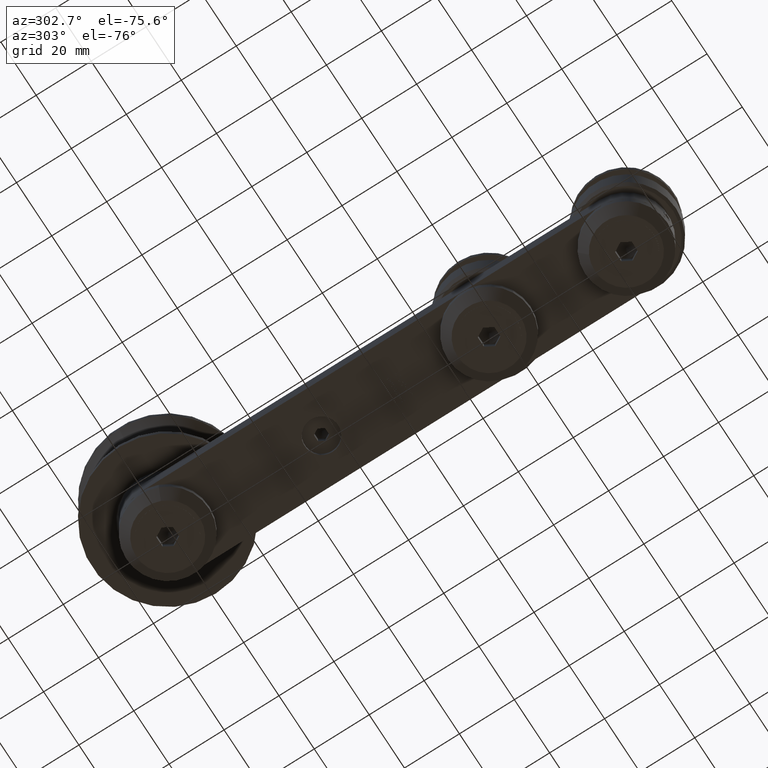
[diagram: clean part render]
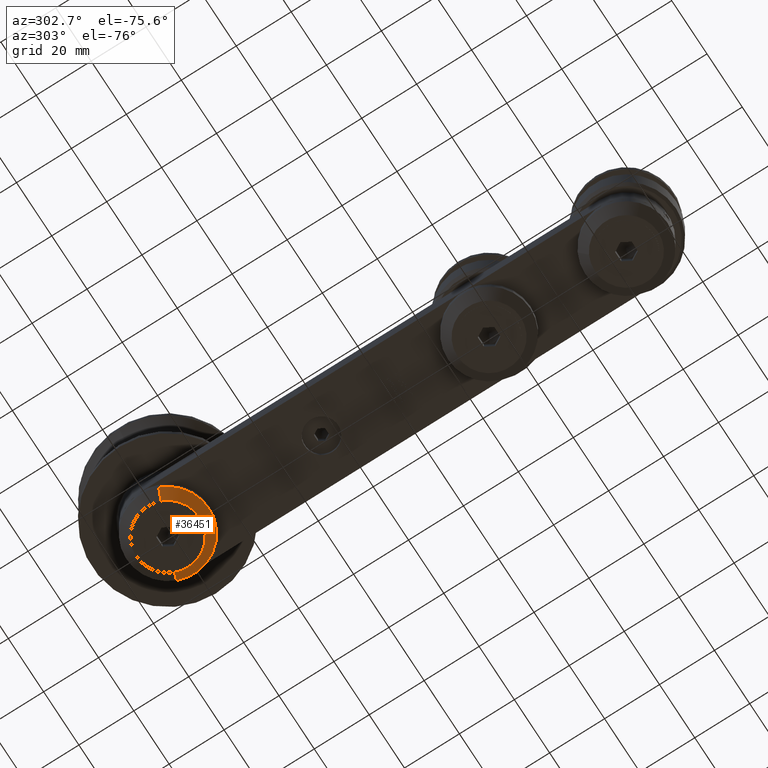
[diagram: same view with one face highlighted and labeled with its STEP entity id]
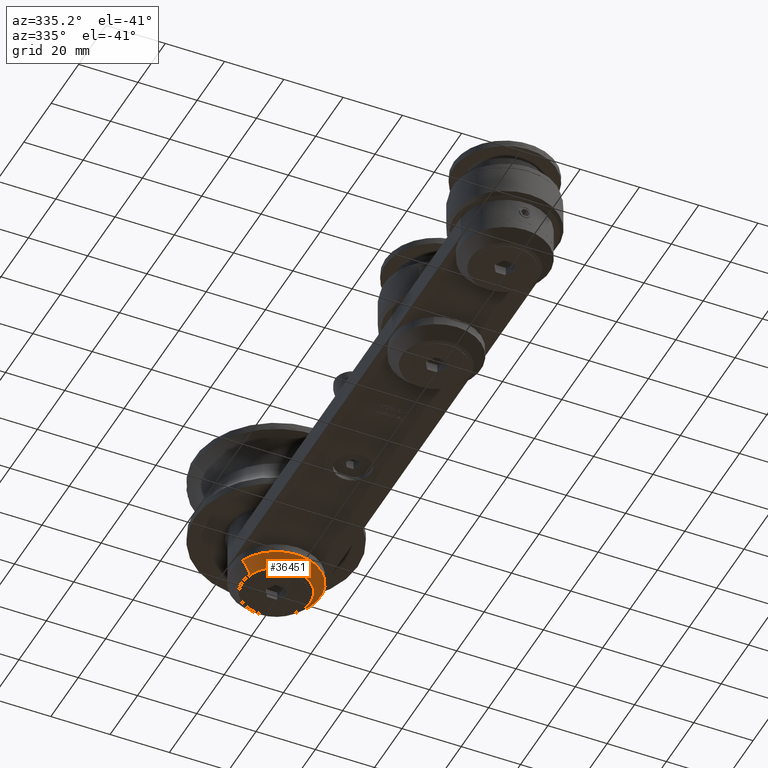
[diagram: same view with one face highlighted and labeled with its STEP entity id]
A machine part, auxiliary view. The second image highlights one B-rep face of the part: STEP entity #36451.
A second angle (auxiliary view) of the same face is appended — the face is thin or edge-on in the first view.
In plain terms, the highlighted conical surface has half-angle 45 deg.
Its self-contained STEP definition (entity closure, byte-faithful):
#1489 = ORIENTED_EDGE ( 'NONE', *, *, #17544, .T. ) ;
#1906 = ORIENTED_EDGE ( 'NONE', *, *, #5349, .T. ) ;
#5342 = DIRECTION ( 'NONE',  ( -0.7071067811865473500, 0.0000000000000000000, -0.7071067811865477900 ) ) ;
#5349 = EDGE_CURVE ( 'NONE', #27456, #34593, #5690, .T. ) ;
#5542 = AXIS2_PLACEMENT_3D ( 'NONE', #20684, #27823, #34748 ) ;
#5690 = LINE ( 'NONE', #40363, #30808 ) ;
#6985 = VECTOR ( 'NONE', #39434, 999.9999999999998900 ) ;
#7422 = ORIENTED_EDGE ( 'NONE', *, *, #34177, .F. ) ;
#8719 = EDGE_LOOP ( 'NONE', ( #7422, #1489, #1906, #24874 ) ) ;
#17544 = EDGE_CURVE ( 'NONE', #24027, #27456, #34519, .T. ) ;
#18284 = CARTESIAN_POINT ( 'NONE',  ( 0.0000000000000000000, 0.0000000000000000000, 6.500000000000000900 ) ) ;
#18861 = DIRECTION ( 'NONE',  ( -1.000000000000000000, 0.0000000000000000000, 0.0000000000000000000 ) ) ;
#20334 = CARTESIAN_POINT ( 'NONE',  ( 11.50000000000000000, 1.622657008870242900E-015, 6.500000000000000900 ) ) ;
#20684 = CARTESIAN_POINT ( 'NONE',  ( 0.0000000000000000000, 0.0000000000000000000, 2.999999999999999100 ) ) ;
#21180 = DIRECTION ( 'NONE',  ( -1.000000000000000000, 0.0000000000000000000, 0.0000000000000000000 ) ) ;
#22662 = CARTESIAN_POINT ( 'NONE',  ( 0.0000000000000000000, 0.0000000000000000000, 2.999999999999999100 ) ) ;
#22753 = CIRCLE ( 'NONE', #5542, 15.00000000000000000 ) ;
#23837 = AXIS2_PLACEMENT_3D ( 'NONE', #18284, #32021, #21180 ) ;
#24027 = VERTEX_POINT ( 'NONE', #20334 ) ;
#24874 = ORIENTED_EDGE ( 'NONE', *, *, #35136, .F. ) ;
#25541 = LINE ( 'NONE', #41029, #6985 ) ;
#26011 = DIRECTION ( 'NONE',  ( -0.0000000000000000000, -0.0000000000000000000, -1.000000000000000000 ) ) ;
#27456 = VERTEX_POINT ( 'NONE', #29896 ) ;
#27664 = CARTESIAN_POINT ( 'NONE',  ( -15.00000000000000000, 0.0000000000000000000, 2.999999999999999100 ) ) ;
#27823 = DIRECTION ( 'NONE',  ( -0.0000000000000000000, -0.0000000000000000000, -1.000000000000000000 ) ) ;
#29896 = CARTESIAN_POINT ( 'NONE',  ( -11.50000000000000000, 0.0000000000000000000, 6.500000000000000900 ) ) ;
#30808 = VECTOR ( 'NONE', #5342, 999.9999999999998900 ) ;
#32021 = DIRECTION ( 'NONE',  ( -0.0000000000000000000, -0.0000000000000000000, -1.000000000000000000 ) ) ;
#34177 = EDGE_CURVE ( 'NONE', #24027, #40710, #25541, .T. ) ;
#34519 = CIRCLE ( 'NONE', #23837, 11.50000000000000000 ) ;
#34593 = VERTEX_POINT ( 'NONE', #27664 ) ;
#34748 = DIRECTION ( 'NONE',  ( -1.000000000000000000, 0.0000000000000000000, 0.0000000000000000000 ) ) ;
#35136 = EDGE_CURVE ( 'NONE', #40710, #34593, #22753, .T. ) ;
#36451 = ADVANCED_FACE ( 'NONE', ( #37515 ), #42420, .T. ) ;
#37515 = FACE_OUTER_BOUND ( 'NONE', #8719, .T. ) ;
#39434 = DIRECTION ( 'NONE',  ( 0.7071067811865473500, 8.659560562354931600E-017, -0.7071067811865477900 ) ) ;
#39947 = CARTESIAN_POINT ( 'NONE',  ( 15.00000000000000000, 1.836970198721029600E-015, 2.999999999999999100 ) ) ;
#40363 = CARTESIAN_POINT ( 'NONE',  ( -15.00000000000000000, 0.0000000000000000000, 2.999999999999999100 ) ) ;
#40710 = VERTEX_POINT ( 'NONE', #39947 ) ;
#41029 = CARTESIAN_POINT ( 'NONE',  ( 15.00000000000000000, 1.836970198721029600E-015, 2.999999999999999100 ) ) ;
#42420 = CONICAL_SURFACE ( 'NONE', #44248, 15.00000000000000000, 0.7853981633974480600 ) ;
#44248 = AXIS2_PLACEMENT_3D ( 'NONE', #22662, #26011, #18861 ) ;